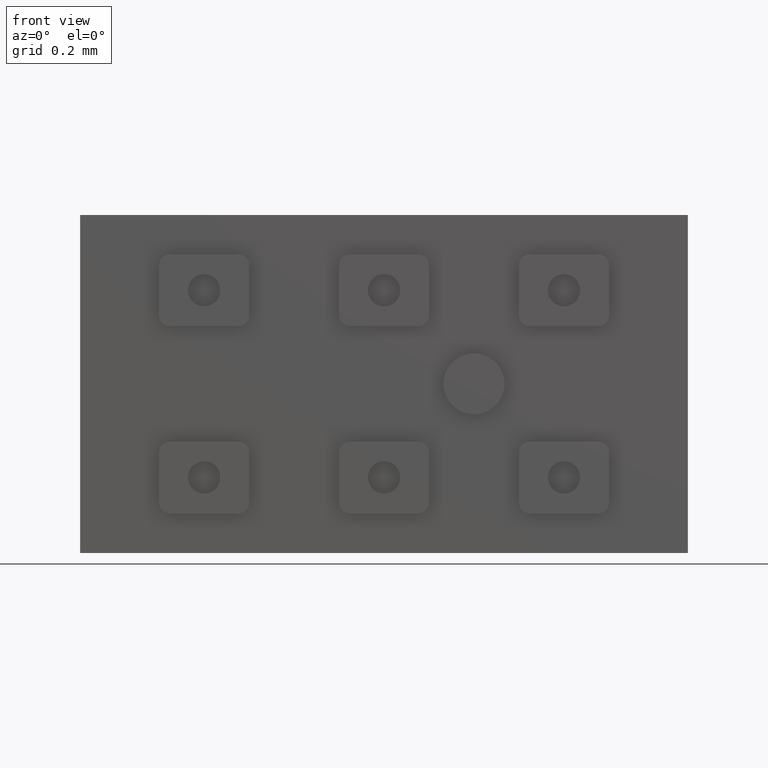
[diagram: clean part render]
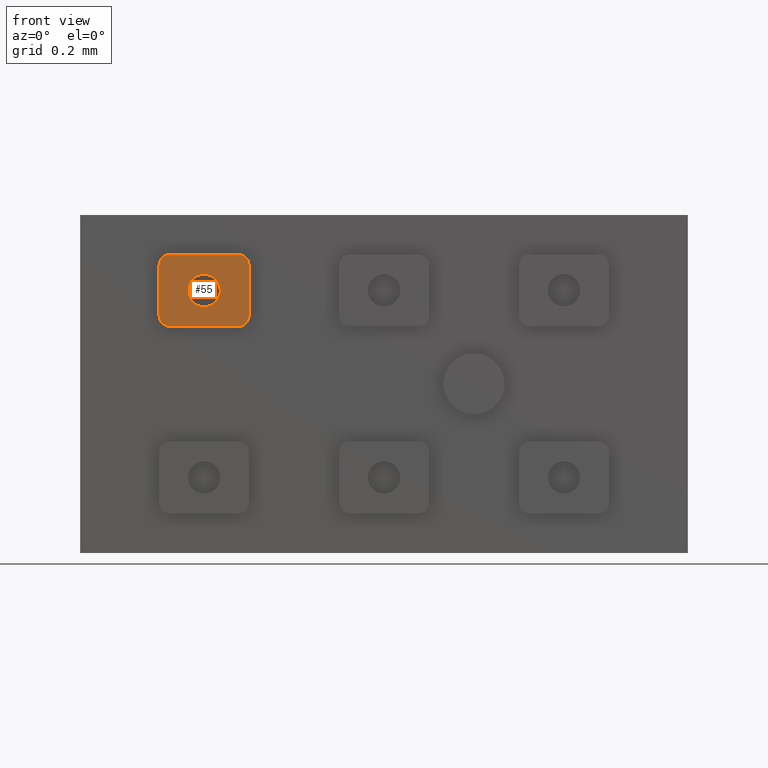
[diagram: same view with one face highlighted and labeled with its STEP entity id]
A machine part, front view. The second image highlights one B-rep face of the part: STEP entity #55.
In plain terms, the highlighted planar face has unit normal (0, 1, 0).
Its self-contained STEP definition (entity closure, byte-faithful):
#7 = ORIENTED_EDGE ( 'NONE', *, *, #856, .T. ) ;
#14 = VERTEX_POINT ( 'NONE', #717 ) ;
#21 = AXIS2_PLACEMENT_3D ( 'NONE', #2484, #1126, #1273 ) ;
#32 = LINE ( 'NONE', #1610, #1492 ) ;
#43 = LINE ( 'NONE', #1229, #2455 ) ;
#55 = ADVANCED_FACE ( 'NONE', ( #2296, #1494 ), #1324, .F. ) ;
#85 = DIRECTION ( 'NONE',  ( 0.000000000000000000, 1.000000000000000000, -0.000000000000000000 ) ) ;
#150 = CARTESIAN_POINT ( 'NONE',  ( -0.5000000000000000000, -0.3149999999999999467, 0.2600000000000070588 ) ) ;
#163 = EDGE_LOOP ( 'NONE', ( #728, #2154, #1007, #1512, #1815, #1339, #1508, #2454 ) ) ;
#208 = CARTESIAN_POINT ( 'NONE',  ( -0.5950000000000000844, -0.3149999999999999467, 0.3300000000000071210 ) ) ;
#227 = DIRECTION ( 'NONE',  ( 0.000000000000000000, 1.000000000000000000, 0.000000000000000000 ) ) ;
#236 = DIRECTION ( 'NONE',  ( 0.000000000000000000, 0.000000000000000000, -1.000000000000000000 ) ) ;
#273 = DIRECTION ( 'NONE',  ( 0.000000000000000000, -0.000000000000000000, 1.000000000000000000 ) ) ;
#363 = CIRCLE ( 'NONE', #1632, 0.02999999999999997113 ) ;
#411 = CARTESIAN_POINT ( 'NONE',  ( -0.5950000000000000844, -0.3149999999999999467, 0.3600000000000070921 ) ) ;
#439 = DIRECTION ( 'NONE',  ( 0.000000000000000000, 0.000000000000000000, 1.000000000000000000 ) ) ;
#443 = VERTEX_POINT ( 'NONE', #1958 ) ;
#460 = VECTOR ( 'NONE', #1719, 1000.000000000000000 ) ;
#478 = EDGE_CURVE ( 'NONE', #14, #2338, #1537, .T. ) ;
#529 = CARTESIAN_POINT ( 'NONE',  ( -0.5950000000000000844, -0.3149999999999999467, 0.1600000000000070810 ) ) ;
#543 = LINE ( 'NONE', #529, #460 ) ;
#563 = EDGE_CURVE ( 'NONE', #2338, #443, #1784, .T. ) ;
#575 = VERTEX_POINT ( 'NONE', #825 ) ;
#599 = DIRECTION ( 'NONE',  ( 0.000000000000000000, 0.000000000000000000, 1.000000000000000000 ) ) ;
#637 = VERTEX_POINT ( 'NONE', #1557 ) ;
#641 = CARTESIAN_POINT ( 'NONE',  ( -0.5000000000000000000, -0.3149999999999999467, 0.2600000000000070588 ) ) ;
#717 = CARTESIAN_POINT ( 'NONE',  ( -0.6250000000000000000, -0.3149999999999999467, 0.3300000000000071210 ) ) ;
#728 = ORIENTED_EDGE ( 'NONE', *, *, #1171, .F. ) ;
#748 = CARTESIAN_POINT ( 'NONE',  ( -0.4049999999999999711, -0.3149999999999999467, 0.1600000000000070810 ) ) ;
#749 = CARTESIAN_POINT ( 'NONE',  ( -0.6250000000000000000, -0.3149999999999999467, 0.1900000000000070521 ) ) ;
#780 = DIRECTION ( 'NONE',  ( 0.000000000000000000, 0.000000000000000000, 1.000000000000000000 ) ) ;
#825 = CARTESIAN_POINT ( 'NONE',  ( -0.3750000000000000000, -0.3149999999999999467, 0.1900000000000070521 ) ) ;
#856 = EDGE_CURVE ( 'NONE', #637, #906, #1583, .T. ) ;
#863 = CARTESIAN_POINT ( 'NONE',  ( -0.5950000000000000844, -0.3149999999999999467, 0.1600000000000070810 ) ) ;
#872 = EDGE_LOOP ( 'NONE', ( #1374, #7 ) ) ;
#888 = AXIS2_PLACEMENT_3D ( 'NONE', #1263, #2053, #273 ) ;
#906 = VERTEX_POINT ( 'NONE', #2431 ) ;
#909 = CARTESIAN_POINT ( 'NONE',  ( -0.4049999999999999711, -0.3149999999999999467, 0.1900000000000070521 ) ) ;
#1007 = ORIENTED_EDGE ( 'NONE', *, *, #2503, .F. ) ;
#1126 = DIRECTION ( 'NONE',  ( 0.000000000000000000, 1.000000000000000000, 0.000000000000000000 ) ) ;
#1149 = CIRCLE ( 'NONE', #21, 0.02999999999999997113 ) ;
#1171 = EDGE_CURVE ( 'NONE', #1563, #1953, #1149, .T. ) ;
#1229 = CARTESIAN_POINT ( 'NONE',  ( -0.3750000000000000000, -0.3149999999999999467, 0.1900000000000070521 ) ) ;
#1254 = CARTESIAN_POINT ( 'NONE',  ( -0.5950000000000000844, -0.3149999999999999467, 0.3600000000000070921 ) ) ;
#1263 = CARTESIAN_POINT ( 'NONE',  ( -0.5950000000000000844, -0.3149999999999999467, 0.1900000000000070521 ) ) ;
#1273 = DIRECTION ( 'NONE',  ( 0.000000000000000000, 0.000000000000000000, 1.000000000000000000 ) ) ;
#1289 = VERTEX_POINT ( 'NONE', #748 ) ;
#1324 = PLANE ( 'NONE',  #888 ) ;
#1339 = ORIENTED_EDGE ( 'NONE', *, *, #563, .F. ) ;
#1357 = CIRCLE ( 'NONE', #1679, 0.04500000000000001221 ) ;
#1374 = ORIENTED_EDGE ( 'NONE', *, *, #1657, .T. ) ;
#1388 = DIRECTION ( 'NONE',  ( 1.000000000000000000, 0.000000000000000000, 0.000000000000000000 ) ) ;
#1414 = VECTOR ( 'NONE', #1388, 1000.000000000000000 ) ;
#1429 = DIRECTION ( 'NONE',  ( 0.000000000000000000, 1.000000000000000000, 0.000000000000000000 ) ) ;
#1430 = CIRCLE ( 'NONE', #1943, 0.02999999999999997113 ) ;
#1447 = CARTESIAN_POINT ( 'NONE',  ( -0.4049999999999999711, -0.3149999999999999467, 0.3300000000000071210 ) ) ;
#1492 = VECTOR ( 'NONE', #2408, 1000.000000000000000 ) ;
#1494 = FACE_OUTER_BOUND ( 'NONE', #163, .T. ) ;
#1508 = ORIENTED_EDGE ( 'NONE', *, *, #478, .F. ) ;
#1512 = ORIENTED_EDGE ( 'NONE', *, *, #2208, .F. ) ;
#1528 = VERTEX_POINT ( 'NONE', #1808 ) ;
#1537 = CIRCLE ( 'NONE', #2533, 0.02999999999999997113 ) ;
#1544 = EDGE_CURVE ( 'NONE', #1953, #14, #32, .T. ) ;
#1557 = CARTESIAN_POINT ( 'NONE',  ( -0.5000000000000000000, -0.3149999999999999467, 0.2150000000000071021 ) ) ;
#1563 = VERTEX_POINT ( 'NONE', #863 ) ;
#1583 = CIRCLE ( 'NONE', #1789, 0.04500000000000001221 ) ;
#1610 = CARTESIAN_POINT ( 'NONE',  ( -0.6250000000000000000, -0.3149999999999999467, 0.1900000000000070521 ) ) ;
#1632 = AXIS2_PLACEMENT_3D ( 'NONE', #909, #2295, #2492 ) ;
#1657 = EDGE_CURVE ( 'NONE', #906, #637, #1357, .T. ) ;
#1679 = AXIS2_PLACEMENT_3D ( 'NONE', #150, #227, #780 ) ;
#1719 = DIRECTION ( 'NONE',  ( -1.000000000000000000, -0.000000000000000000, -0.000000000000000000 ) ) ;
#1784 = LINE ( 'NONE', #411, #1414 ) ;
#1789 = AXIS2_PLACEMENT_3D ( 'NONE', #641, #1429, #439 ) ;
#1808 = CARTESIAN_POINT ( 'NONE',  ( -0.3750000000000000000, -0.3149999999999999467, 0.3300000000000071210 ) ) ;
#1815 = ORIENTED_EDGE ( 'NONE', *, *, #2314, .F. ) ;
#1943 = AXIS2_PLACEMENT_3D ( 'NONE', #1447, #85, #236 ) ;
#1953 = VERTEX_POINT ( 'NONE', #749 ) ;
#1958 = CARTESIAN_POINT ( 'NONE',  ( -0.4049999999999999711, -0.3149999999999999467, 0.3600000000000070921 ) ) ;
#2030 = EDGE_CURVE ( 'NONE', #1289, #1563, #543, .T. ) ;
#2053 = DIRECTION ( 'NONE',  ( 0.000000000000000000, 1.000000000000000000, 0.000000000000000000 ) ) ;
#2154 = ORIENTED_EDGE ( 'NONE', *, *, #2030, .F. ) ;
#2170 = DIRECTION ( 'NONE',  ( 0.000000000000000000, 1.000000000000000000, 0.000000000000000000 ) ) ;
#2208 = EDGE_CURVE ( 'NONE', #1528, #575, #43, .T. ) ;
#2295 = DIRECTION ( 'NONE',  ( 0.000000000000000000, 1.000000000000000000, 0.000000000000000000 ) ) ;
#2296 = FACE_BOUND ( 'NONE', #872, .T. ) ;
#2314 = EDGE_CURVE ( 'NONE', #443, #1528, #1430, .T. ) ;
#2338 = VERTEX_POINT ( 'NONE', #1254 ) ;
#2408 = DIRECTION ( 'NONE',  ( 0.000000000000000000, 0.000000000000000000, 1.000000000000000000 ) ) ;
#2431 = CARTESIAN_POINT ( 'NONE',  ( -0.5000000000000000000, -0.3149999999999999467, 0.3050000000000070988 ) ) ;
#2454 = ORIENTED_EDGE ( 'NONE', *, *, #1544, .F. ) ;
#2455 = VECTOR ( 'NONE', #2465, 1000.000000000000000 ) ;
#2465 = DIRECTION ( 'NONE',  ( -0.000000000000000000, -0.000000000000000000, -1.000000000000000000 ) ) ;
#2484 = CARTESIAN_POINT ( 'NONE',  ( -0.5950000000000000844, -0.3149999999999999467, 0.1900000000000070521 ) ) ;
#2492 = DIRECTION ( 'NONE',  ( 0.000000000000000000, 0.000000000000000000, 1.000000000000000000 ) ) ;
#2503 = EDGE_CURVE ( 'NONE', #575, #1289, #363, .T. ) ;
#2533 = AXIS2_PLACEMENT_3D ( 'NONE', #208, #2170, #599 ) ;